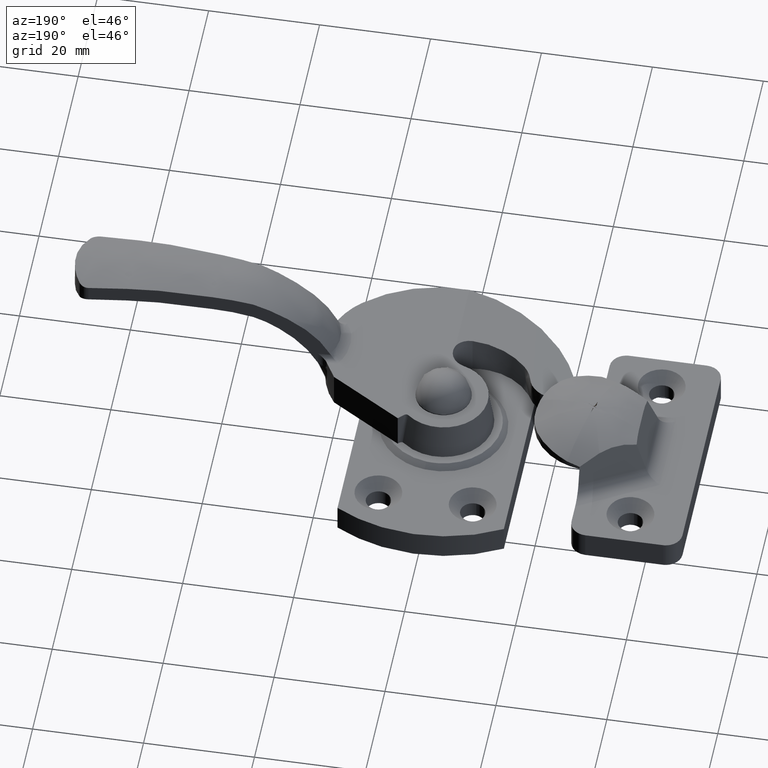
[diagram: clean part render]
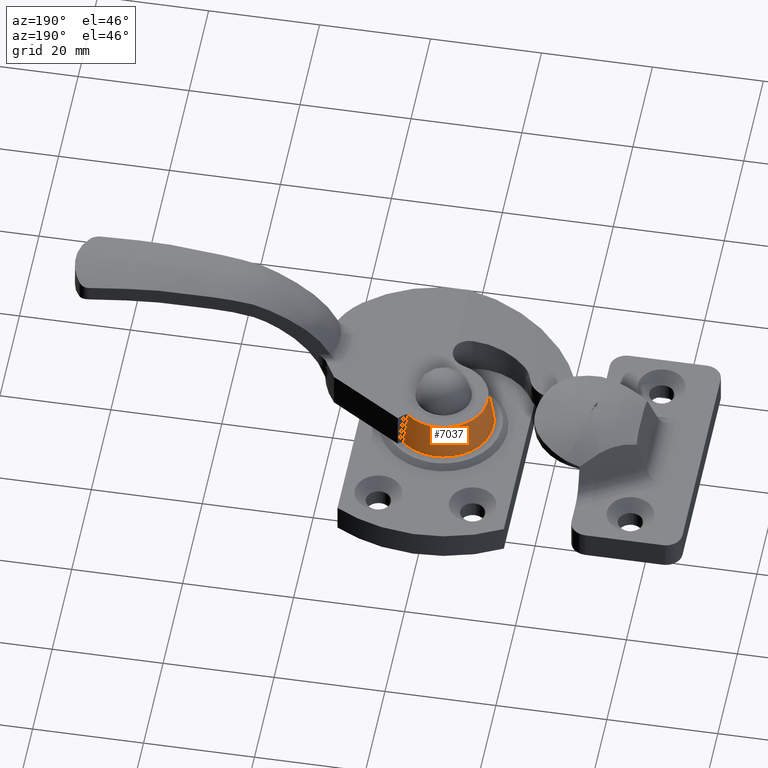
[diagram: same view with one face highlighted and labeled with its STEP entity id]
A machine part, auxiliary view. The second image highlights one B-rep face of the part: STEP entity #7037.
In plain terms, the highlighted face is a freeform B-spline surface patch.
Its self-contained STEP definition (entity closure, byte-faithful):
#6733=CARTESIAN_POINT('',(-6.019979129582580,-6.690280358803371,6.100000000000001));
#6734=VERTEX_POINT('',#6733);
#6758=CARTESIAN_POINT('',(-5.313746734249820,-5.979712773425181,12.600000000000000));
#6759=VERTEX_POINT('',#6758);
#6760=CARTESIAN_POINT('',(-5.313746734249820,-5.979712773425181,12.600000000000000));
#6761=CARTESIAN_POINT('',(-5.349533523470430,-6.015745165064602,12.270557920732481));
#6762=CARTESIAN_POINT('',(-5.385321609448574,-6.051774456371339,11.941115643218570));
#6763=CARTESIAN_POINT('',(-5.421110921910900,-6.087800805136510,11.611673177179039));
#6764=CARTESIAN_POINT('',(-5.564268171845063,-6.231906200282617,10.293903312239820));
#6765=CARTESIAN_POINT('',(-5.707444960453213,-6.375964696712732,8.976130440626841));
#6766=CARTESIAN_POINT('',(-5.850637526463850,-6.519984828820389,7.658355091544970));
#6767=CARTESIAN_POINT('',(-5.907082327490705,-6.576755846528628,7.138903771903880));
#6768=CARTESIAN_POINT('',(-5.963529591718244,-6.633520878192935,6.619452065668428));
#6769=CARTESIAN_POINT('',(-6.019979129582580,-6.690280358803371,6.100000000000001));
#6770=B_SPLINE_CURVE_WITH_KNOTS('',3,(#6760,#6761,#6762,#6763,#6764,#6765,#6766,#6767,#6768,#6769),.UNSPECIFIED.,.F.,.U.,(4,3,3,4),(0.0,0.001000000000049,0.005000000004996,0.006576752280387),.UNSPECIFIED.);
#6771=EDGE_CURVE('',#6759,#6734,#6770,.T.);
#6897=CARTESIAN_POINT('',(2.545310329733175,8.632577677767721,6.100000000000001));
#6898=VERTEX_POINT('',#6897);
#6914=CARTESIAN_POINT('',(-6.019979129582577,-6.690280358803373,6.100000000000001));
#6915=CARTESIAN_POINT('',(-1.463217691514922,-10.790498478894293,6.100000000000001));
#6916=CARTESIAN_POINT('',(4.020910692237460,-8.051849303424056,6.100000000000001));
#6917=CARTESIAN_POINT('',(9.505039075989840,-5.313200127953822,6.100000000000001));
#6918=CARTESIAN_POINT('',(8.965006388132609,0.792881113876164,6.100000000000001));
#6919=CARTESIAN_POINT('',(8.424973700275379,6.898962355706146,6.100000000000001));
#6920=CARTESIAN_POINT('',(2.545310329733175,8.632577677767721,6.100000000000001));
#6928=(BOUNDED_CURVE()B_SPLINE_CURVE(2,(#6914,#6915,#6916,#6917,#6918,#6919,#6920),.UNSPECIFIED.,.F.,.U.)B_SPLINE_CURVE_WITH_KNOTS((3,2,2,3),(0.0,0.333333333333333,0.666666666666667,1.0),.UNSPECIFIED.)CURVE()GEOMETRIC_REPRESENTATION_ITEM()RATIONAL_B_SPLINE_CURVE((1.0,0.826502861599303,1.0,0.826502861599303,1.0,0.826502861599303,1.0))REPRESENTATION_ITEM(''));
#6929=EDGE_CURVE('',#6734,#6898,#6928,.T.);
#6966=CARTESIAN_POINT('',(2.262372028716430,7.672974900451860,12.600000000000000));
#6967=VERTEX_POINT('',#6966);
#6983=CARTESIAN_POINT('',(2.545310329733175,8.632577677767721,6.100000000000001));
#6984=CARTESIAN_POINT('',(2.262372028716430,7.672974900451860,12.600000000000000));
#6985=QUASI_UNIFORM_CURVE('',1,(#6983,#6984),.UNSPECIFIED.,.F.,.U.);
#6986=EDGE_CURVE('',#6898,#6967,#6985,.T.);
#6997=CARTESIAN_POINT('',(-5.552107153419634,-5.724285539883084,12.762499999999999));
#6998=CARTESIAN_POINT('',(-6.283908615392277,-6.478781159488553,5.933437500000000));
#6999=CARTESIAN_POINT('',(1.975710473779419,-13.025677094585983,12.762500000000001));
#7000=CARTESIAN_POINT('',(2.236121120259097,-14.742540490338447,5.933437500000001));
#7001=CARTESIAN_POINT('',(6.999831968585438,-3.820430760625999,12.762499999999999));
#7002=CARTESIAN_POINT('',(7.922452358759040,-4.323986750943904,5.933437500000000));
#7003=CARTESIAN_POINT('',(12.023953463391456,5.384815573333985,12.762500000000001));
#7004=CARTESIAN_POINT('',(13.608783597258981,6.094566988450639,5.933437500000001));
#7005=CARTESIAN_POINT('',(1.810859697208757,7.766216964661305,12.762499999999999));
#7006=CARTESIAN_POINT('',(2.049542009568036,8.789851554500844,5.933437500000000));
#7014=(BOUNDED_SURFACE()B_SPLINE_SURFACE(1,2,((#6997,#6999,#7001,#7003,#7005),(#6998,#7000,#7002,#7004,#7006)),.UNSPECIFIED.,.F.,.F.,.U.)B_SPLINE_SURFACE_WITH_KNOTS((2,2),(3,2,3),(0.0,6.909478391937802),(0.0,17.901829119304619,35.803658238609231),.UNSPECIFIED.)GEOMETRIC_REPRESENTATION_ITEM()RATIONAL_B_SPLINE_SURFACE(((1.0,0.605293988042895,1.0,0.605293988042895,1.0),(1.0,0.605293988042895,1.0,0.605293988042895,1.0)))REPRESENTATION_ITEM('')SURFACE());
#7015=CARTESIAN_POINT('',(-5.313746734249812,-5.979712773425175,12.600000000000000));
#7016=CARTESIAN_POINT('',(-1.250011813990291,-9.590865847089800,12.600000000000005));
#7017=CARTESIAN_POINT('',(3.603555286836323,-7.141936607330586,12.600000000000000));
#7018=CARTESIAN_POINT('',(8.457122387662942,-4.693007367571371,12.600000000000005));
#7019=CARTESIAN_POINT('',(7.966974059554819,0.721244440391294,12.600000000000000));
#7020=CARTESIAN_POINT('',(7.476825731446696,6.135496248353957,12.600000000000005));
#7021=CARTESIAN_POINT('',(2.262372028716430,7.672974900451860,12.600000000000000));
#7029=(BOUNDED_CURVE()B_SPLINE_CURVE(2,(#7015,#7016,#7017,#7018,#7019,#7020,#7021),.UNSPECIFIED.,.F.,.U.)B_SPLINE_CURVE_WITH_KNOTS((3,2,2,3),(0.0,0.333333333333333,0.666666666666667,1.0),.UNSPECIFIED.)CURVE()GEOMETRIC_REPRESENTATION_ITEM()RATIONAL_B_SPLINE_CURVE((1.0,0.827085312218304,1.0,0.827085312218304,1.0,0.827085312218304,1.0))REPRESENTATION_ITEM(''));
#7030=EDGE_CURVE('',#6759,#6967,#7029,.T.);
#7031=ORIENTED_EDGE('',*,*,#7030,.F.);
#7032=ORIENTED_EDGE('',*,*,#6771,.T.);
#7033=ORIENTED_EDGE('',*,*,#6929,.T.);
#7034=ORIENTED_EDGE('',*,*,#6986,.T.);
#7035=EDGE_LOOP('',(#7031,#7032,#7033,#7034));
#7036=FACE_OUTER_BOUND('',#7035,.T.);
#7037=ADVANCED_FACE('',(#7036),#7014,.T.);